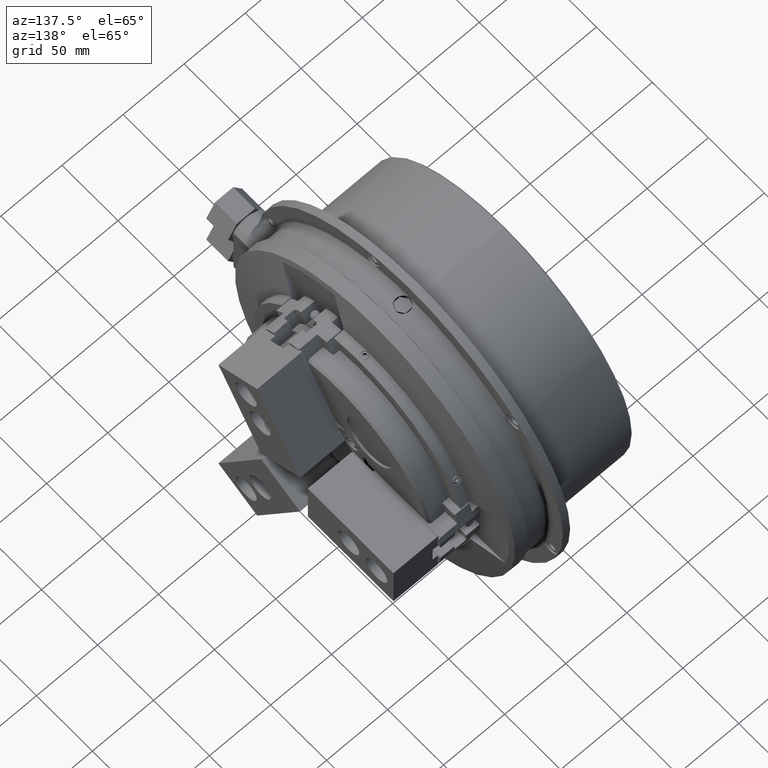
[diagram: clean part render]
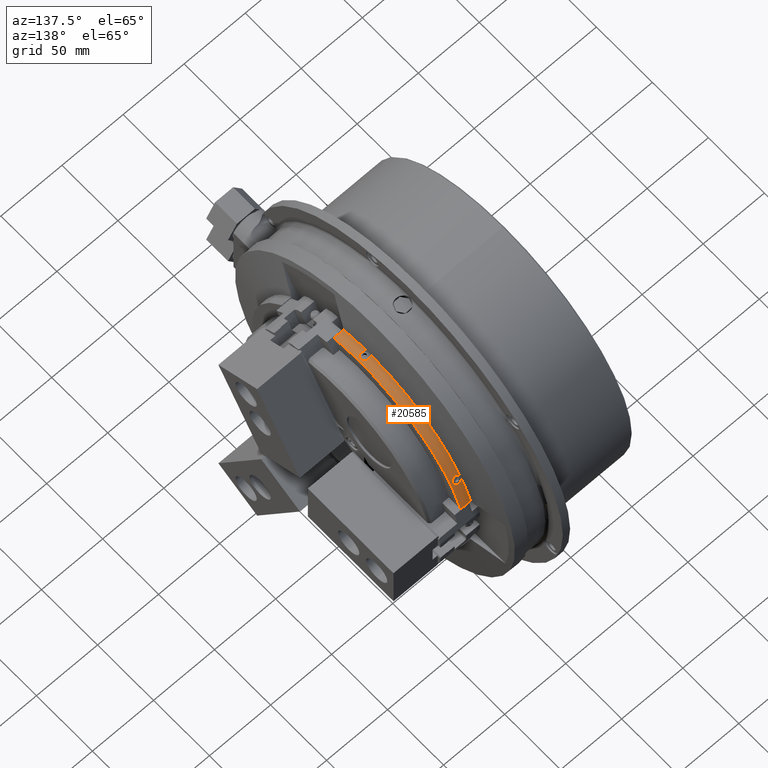
[diagram: same view with one face highlighted and labeled with its STEP entity id]
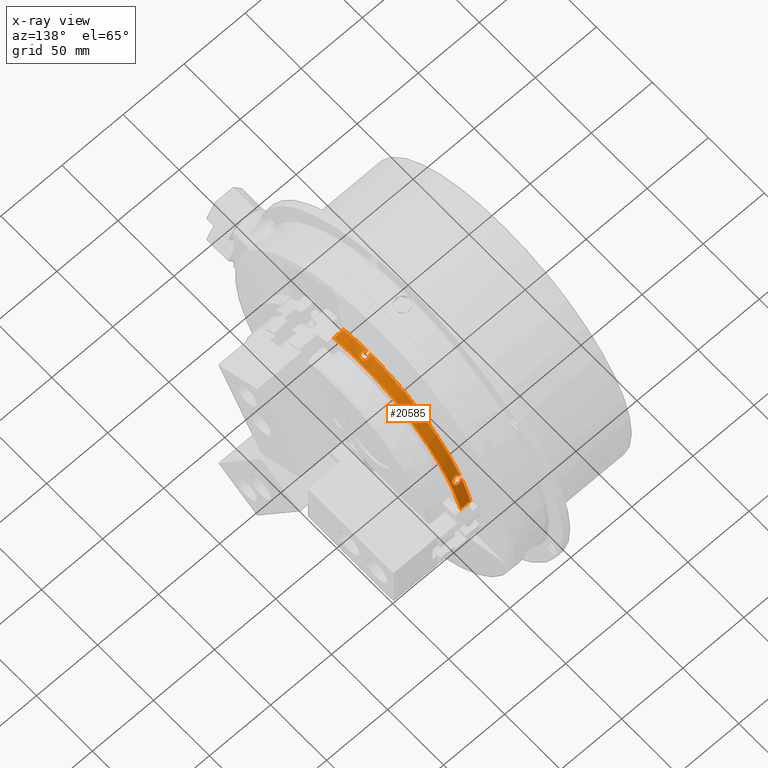
[diagram: x-ray of the same camera — body ghosted, the highlighted face saturated]
A machine part, auxiliary view. The second image highlights one B-rep face of the part: STEP entity #20585.
The next image is the same camera in x-ray: the body ghosted, the highlighted face saturated — about 0% of this face is hidden behind the body in this view.
In plain terms, the highlighted cylindrical surface (partial cylindrical patch) has radius 95 mm, axis along (1, 0, 0).
Its self-contained STEP definition (entity closure, byte-faithful):
#264=CYLINDRICAL_SURFACE('',#21955,95.);
#567=B_SPLINE_CURVE_WITH_KNOTS('',3,(#30682,#30683,#30684,#30685,#30686,
#30687,#30688,#30689,#30690,#30691,#30692,#30693,#30694,#30695,#30696,#30697,
#30698,#30699,#30700,#30701,#30702,#30703,#30704,#30705,#30706,#30707,#30708,
#30709,#30710,#30711,#30712,#30713,#30714,#30715,#30716,#30717,#30718,#30719,
#30720,#30721,#30722,#30723,#30724,#30725,#30726,#30727,#30728,#30729,#30730,
#30731,#30732,#30733,#30734,#30735,#30736,#30737,#30738,#30739,#30740,#30741,
#30742,#30743,#30744,#30745,#30746,#30747,#30748,#30749,#30750,#30751,#30752,
#30753,#30754,#30755,#30756,#30757,#30758,#30759,#30760,#30761,#30762,#30763,
#30764,#30765,#30766,#30767,#30768,#30769,#30770,#30771,#30772,#30773,#30774,
#30775,#30776,#30777,#30778,#30779,#30780,#30781,#30782,#30783,#30784,#30785,
#30786,#30787,#30788,#30789,#30790,#30791,#30792,#30793,#30794,#30795,#30796,
#30797,#30798,#30799,#30800,#30801,#30802,#30803,#30804,#30805,#30806,#30807,
#30808,#30809,#30810,#30811,#30812,#30813,#30814,#30815,#30816,#30817,#30818,
#30819,#30820,#30821,#30822,#30823,#30824,#30825,#30826,#30827,#30828,#30829,
#30830,#30831,#30832,#30833,#30834,#30835,#30836,#30837,#30838,#30839,#30840,
#30841,#30842,#30843,#30844,#30845,#30846,#30847),.UNSPECIFIED.,.F.,.F.,
(4,2,2,2,1,2,1,1,2,2,1,1,2,1,1,2,2,1,1,2,1,1,2,2,1,1,2,1,1,2,2,1,2,1,1,
2,2,1,1,2,1,1,2,2,1,2,1,1,2,2,2,1,2,1,1,2,2,1,2,1,1,2,2,1,2,1,2,1,1,2,2,
1,1,2,1,2,2,1,1,1,2,1,2,2,1,1,1,2,1,1,2,2,1,1,2,1,2,2,1,1,2,2,1,1,2,1,2,
2,2,1,4),(0.,0.0156249999999918,0.0175781249999911,0.0195312499999904,0.0234374999999908,
0.0312499999999918,0.0468749999999923,0.0624999999999928,0.0781249999999933,
0.0800781249999932,0.0820312499999931,0.085937499999993,0.0937499999999925,
0.109374999999991,0.12499999999999,0.140624999999989,0.14257812499999,0.14453124999999,
0.148437499999991,0.156249999999992,0.171874999999994,0.187499999999995,
0.203124999999997,0.205078124999997,0.207031249999997,0.210937499999998,
0.218749999999999,0.234375000000002,0.250000000000004,0.265625000000007,
0.269531250000008,0.273437500000009,0.281250000000012,0.296875000000018,
0.312500000000023,0.328125000000029,0.33007812500003,0.332031250000031,
0.335937500000033,0.343750000000036,0.359375000000044,0.375000000000052,
0.390625000000059,0.394531250000062,0.398437500000064,0.40625000000007,
0.421875000000081,0.437500000000091,0.453125000000102,0.455078125000102,
0.457031250000102,0.460937500000101,0.468750000000099,0.484375000000095,
0.500000000000091,0.515625000000087,0.519531250000086,0.523437500000085,
0.531250000000083,0.54687500000008,0.562500000000077,0.578125000000074,
0.582031250000074,0.585937500000074,0.593750000000074,0.609375000000075,
0.625000000000075,0.632812500000075,0.636718750000075,0.638671875000074,
0.640625000000074,0.656250000000073,0.671875000000073,0.687500000000072,
0.695312500000071,0.699218750000071,0.70117187500007,0.703125000000069,
0.718750000000064,0.734375000000058,0.750000000000052,0.75781250000005,
0.761718750000048,0.763671875000047,0.765625000000047,0.781250000000042,
0.796875000000037,0.812500000000032,0.820312500000029,0.824218750000028,
0.826171875000027,0.828125000000026,0.84375000000002,0.859375000000014,
0.875000000000007,0.882812500000005,0.886718750000004,0.890625000000003,
0.906249999999999,0.921874999999995,0.93749999999999,0.93945312499999,0.94140624999999,
0.94531249999999,0.953124999999991,0.968749999999994,0.984374999999997,
0.992187499999998,0.994140624999999,0.996093749999999,1.),.UNSPECIFIED.);
#568=B_SPLINE_CURVE_WITH_KNOTS('',3,(#30848,#30849,#30850,#30851,#30852,
#30853,#30854,#30855,#30856,#30857,#30858,#30859,#30860,#30861,#30862,#30863,
#30864,#30865,#30866,#30867,#30868,#30869,#30870,#30871,#30872,#30873,#30874,
#30875,#30876,#30877,#30878,#30879,#30880,#30881,#30882,#30883,#30884,#30885,
#30886,#30887,#30888,#30889,#30890,#30891,#30892,#30893,#30894,#30895,#30896,
#30897,#30898,#30899,#30900,#30901,#30902,#30903,#30904,#30905,#30906,#30907,
#30908,#30909,#30910,#30911,#30912,#30913,#30914,#30915,#30916,#30917,#30918,
#30919,#30920,#30921,#30922,#30923,#30924,#30925,#30926,#30927,#30928,#30929,
#30930,#30931,#30932,#30933,#30934,#30935,#30936,#30937,#30938,#30939,#30940,
#30941,#30942,#30943,#30944,#30945,#30946,#30947,#30948,#30949,#30950,#30951,
#30952,#30953,#30954,#30955,#30956,#30957,#30958,#30959,#30960,#30961,#30962,
#30963,#30964,#30965,#30966,#30967,#30968,#30969,#30970,#30971,#30972,#30973,
#30974,#30975,#30976,#30977,#30978,#30979,#30980,#30981,#30982,#30983,#30984,
#30985,#30986,#30987,#30988,#30989,#30990,#30991,#30992,#30993,#30994,#30995,
#30996,#30997,#30998,#30999,#31000,#31001,#31002,#31003,#31004,#31005,#31006,
#31007,#31008,#31009,#31010,#31011,#31012,#31013),.UNSPECIFIED.,.F.,.F.,
(4,1,2,2,1,1,2,2,1,1,2,2,1,1,2,1,2,2,2,1,1,2,1,2,2,2,1,1,2,2,2,1,1,2,2,
2,1,1,1,1,2,2,2,1,1,1,2,2,2,1,1,1,2,2,2,1,1,1,1,2,1,2,2,2,1,1,2,2,2,1,2,
1,1,2,2,2,1,2,1,1,2,2,2,1,2,1,1,2,2,2,2,1,1,2,2,2,1,2,1,1,2,2,2,2,1,1,4),
(0.,0.015624999999999,0.031249999999998,0.0332031249999977,0.0351562499999974,
0.0390624999999968,0.0468749999999956,0.0624999999999932,0.0703124999999918,
0.0742187499999911,0.076171874999991,0.0781249999999909,0.0937499999999899,
0.109374999999989,0.124999999999988,0.128906249999988,0.130859374999987,
0.132812499999987,0.140624999999988,0.156249999999988,0.171874999999989,
0.187499999999989,0.19140624999999,0.19335937499999,0.19531249999999,0.20312499999999,
0.21874999999999,0.234374999999989,0.249999999999989,0.257812499999989,
0.265624999999988,0.281249999999987,0.296874999999986,0.312499999999985,
0.320312499999984,0.322265624999984,0.324218749999984,0.328124999999984,
0.343749999999984,0.359374999999983,0.374999999999983,0.382812499999983,
0.386718749999982,0.390624999999982,0.406249999999982,0.421874999999981,
0.437499999999981,0.445312499999981,0.44921874999998,0.45312499999998,0.46874999999998,
0.484374999999979,0.499999999999979,0.507812499999978,0.509765624999978,
0.511718749999978,0.515624999999978,0.531249999999978,0.546874999999978,
0.562499999999977,0.566406249999977,0.568359374999977,0.570312499999977,
0.578124999999977,0.593749999999976,0.609374999999976,0.624999999999975,
0.628906249999975,0.630859374999975,0.632812499999975,0.640624999999975,
0.656249999999975,0.671874999999975,0.687499999999975,0.689453124999975,
0.691406249999975,0.695312499999975,0.703124999999975,0.718749999999975,
0.734374999999975,0.749999999999976,0.751953124999976,0.753906249999976,
0.757812499999976,0.765624999999977,0.781249999999978,0.79687499999998,
0.812499999999981,0.816406249999982,0.820312499999982,0.828124999999983,
0.843749999999987,0.85937499999999,0.874999999999993,0.878906249999994,
0.880859374999994,0.882812499999994,0.890624999999995,0.906249999999995,
0.921874999999995,0.937499999999996,0.941406249999996,0.945312499999996,
0.953124999999996,0.968749999999998,0.984374999999999,1.),.UNSPECIFIED.);
#771=LINE('',#30132,#2672);
#796=LINE('',#30338,#2697);
#2672=VECTOR('',#24028,1000.);
#2697=VECTOR('',#24139,1000.);
#4676=ORIENTED_EDGE('',*,*,#10532,.F.);
#4677=ORIENTED_EDGE('',*,*,#10515,.T.);
#4678=ORIENTED_EDGE('',*,*,#10533,.F.);
#4679=ORIENTED_EDGE('',*,*,#10511,.T.);
#4680=ORIENTED_EDGE('',*,*,#10526,.T.);
#4681=ORIENTED_EDGE('',*,*,#10531,.F.);
#4682=ORIENTED_EDGE('',*,*,#10460,.F.);
#4683=ORIENTED_EDGE('',*,*,#10519,.T.);
#10460=EDGE_CURVE('',#13399,#13394,#771,.T.);
#10511=EDGE_CURVE('',#13445,#13444,#15467,.T.);
#10515=EDGE_CURVE('',#13449,#13448,#15471,.T.);
#10519=EDGE_CURVE('',#13399,#13452,#15475,.T.);
#10526=EDGE_CURVE('',#13444,#13456,#796,.T.);
#10531=EDGE_CURVE('',#13394,#13456,#15480,.T.);
#10532=EDGE_CURVE('',#13449,#13452,#567,.T.);
#10533=EDGE_CURVE('',#13445,#13448,#568,.T.);
#13394=VERTEX_POINT('',#30116);
#13399=VERTEX_POINT('',#30131);
#13444=VERTEX_POINT('',#30309);
#13445=VERTEX_POINT('',#30311);
#13448=VERTEX_POINT('',#30317);
#13449=VERTEX_POINT('',#30319);
#13452=VERTEX_POINT('',#30325);
#13456=VERTEX_POINT('',#30337);
#15467=CIRCLE('',#21937,95.);
#15471=CIRCLE('',#21941,95.);
#15475=CIRCLE('',#21945,95.);
#15480=CIRCLE('',#21954,95.);
#16255=EDGE_LOOP('',(#4676,#4677,#4678,#4679,#4680,#4681,#4682,#4683));
#18007=FACE_BOUND('',#16255,.T.);
#20585=ADVANCED_FACE('',(#18007),#264,.T.);
#21937=AXIS2_PLACEMENT_3D('',#30310,#24111,#24112);
#21941=AXIS2_PLACEMENT_3D('',#30318,#24119,#24120);
#21945=AXIS2_PLACEMENT_3D('',#30326,#24127,#24128);
#21954=AXIS2_PLACEMENT_3D('',#30680,#24150,#24151);
#21955=AXIS2_PLACEMENT_3D('',#30681,#24152,#24153);
#24028=DIRECTION('',(1.,0.,0.));
#24111=DIRECTION('',(1.,0.,0.));
#24112=DIRECTION('',(0.,0.,-1.));
#24119=DIRECTION('',(1.,0.,0.));
#24120=DIRECTION('',(0.,0.,-1.));
#24127=DIRECTION('',(1.,0.,0.));
#24128=DIRECTION('',(0.,0.,-1.));
#24139=DIRECTION('',(1.,0.,0.));
#24150=DIRECTION('',(1.,0.,0.));
#24151=DIRECTION('',(0.,0.,-1.));
#24152=DIRECTION('',(1.,0.,0.));
#24153=DIRECTION('',(0.,0.,-1.));
#30116=CARTESIAN_POINT('',(-18.,91.0823802938856,27.));
#30131=CARTESIAN_POINT('',(-26.,91.0823802938856,27.));
#30132=CARTESIAN_POINT('',(52.74,91.0823802938856,27.));
#30309=CARTESIAN_POINT('',(-26.,-22.1585042447627,92.3796551716601));
#30310=CARTESIAN_POINT('',(-26.,0.,0.));
#30311=CARTESIAN_POINT('',(-26.,-1.3515316732204,94.9903856300009));
#30317=CARTESIAN_POINT('',(-26.,1.3515315904943,94.9903856311779));
#30318=CARTESIAN_POINT('',(-26.,0.,0.));
#30319=CARTESIAN_POINT('',(-26.,81.588321234213,48.665653578092));
#30325=CARTESIAN_POINT('',(-26.,82.9398528671241,46.3247321242098));
#30326=CARTESIAN_POINT('',(-26.,0.,0.));
#30337=CARTESIAN_POINT('',(-18.,-22.1585042447621,92.3796551716603));
#30338=CARTESIAN_POINT('',(52.74,-22.1585042447621,92.3796551716603));
#30680=CARTESIAN_POINT('',(-18.,0.,0.));
#30681=CARTESIAN_POINT('',(52.74,0.,0.));
#30682=CARTESIAN_POINT('',(-26.,81.5883212836392,48.6656534952288));
#30683=CARTESIAN_POINT('',(-25.9610056386702,81.545461411307,48.7375083822562));
#30684=CARTESIAN_POINT('',(-25.9183117203386,81.5032446961601,48.8080692561271));
#30685=CARTESIAN_POINT('',(-25.8660164892784,81.4565059443326,48.885966710539));
#30686=CARTESIAN_POINT('',(-25.8601465667113,81.451323258759,48.8946013415306));
#30687=CARTESIAN_POINT('',(-25.8482874882492,81.4409790541472,48.9118291587222));
#30688=CARTESIAN_POINT('',(-25.8422955847738,81.4358152528243,48.9204261403892));
#30689=CARTESIAN_POINT('',(-25.8241819534712,81.420391104657,48.946095972634));
#30690=CARTESIAN_POINT('',(-25.7873703311084,81.389782765458,48.9969996233775));
#30691=CARTESIAN_POINT('',(-25.7488254585517,81.359888006223,49.0466111508635));
#30692=CARTESIAN_POINT('',(-25.6694644673042,81.3010385707462,49.1441440498732));
#30693=CARTESIAN_POINT('',(-25.5576014721893,81.2250760863121,49.269687011324));
#30694=CARTESIAN_POINT('',(-25.3719839750243,81.1185915374613,49.4447882129935));
#30695=CARTESIAN_POINT('',(-25.2363146104969,81.0526492573811,49.5527166289035));
#30696=CARTESIAN_POINT('',(-25.1565606625111,81.0170293381945,49.6108961284352));
#30697=CARTESIAN_POINT('',(-25.1476459510729,81.0130897594023,49.6173290669185));
#30698=CARTESIAN_POINT('',(-25.1297503374137,81.0052648997843,49.6301029075664));
#30699=CARTESIAN_POINT('',(-25.1028108171633,80.9936102699646,49.6491236416778));
#30700=CARTESIAN_POINT('',(-25.0392829963855,80.9669921106013,49.6925310076347));
#30701=CARTESIAN_POINT('',(-24.9836958609228,80.9451555807805,49.7280857842371));
#30702=CARTESIAN_POINT('',(-24.8710326876066,80.9027723067117,49.7970314791267));
#30703=CARTESIAN_POINT('',(-24.7168500523265,80.8496962504716,49.8831966422898));
#30704=CARTESIAN_POINT('',(-24.4738641446376,80.7803058160772,49.9954711922984));
#30705=CARTESIAN_POINT('',(-24.30402127361,80.7409475760407,50.0589705899031));
#30706=CARTESIAN_POINT('',(-24.2062151357266,80.7208155825318,50.0914159281893));
#30707=CARTESIAN_POINT('',(-24.1953148417906,80.7186063957068,50.0949757816324));
#30708=CARTESIAN_POINT('',(-24.1735020876611,80.7142542358233,50.1019877867362));
#30709=CARTESIAN_POINT('',(-24.1407457897895,80.707821378907,50.1123505879055));
#30710=CARTESIAN_POINT('',(-24.0640556245259,80.6934759524346,50.135449947769));
#30711=CARTESIAN_POINT('',(-23.9978818898494,80.6823092584037,50.153416094047));
#30712=CARTESIAN_POINT('',(-23.8649572521857,80.6614627711927,50.1869416910086));
#30713=CARTESIAN_POINT('',(-23.6861873149608,80.6376275751047,50.2252332628735));
#30714=CARTESIAN_POINT('',(-23.4134817362391,80.6136388880148,50.263720374472));
#30715=CARTESIAN_POINT('',(-23.2286207013202,80.6055683008281,50.276658332577));
#30716=CARTESIAN_POINT('',(-23.1237510004677,80.6033253668917,50.2802539772893));
#30717=CARTESIAN_POINT('',(-23.1120803146687,80.603108032237,50.2806023797004));
#30718=CARTESIAN_POINT('',(-23.0887627457801,80.6027382957613,50.2811950867023));
#30719=CARTESIAN_POINT('',(-23.0538110876404,80.6022807528537,50.281928540792));
#30720=CARTESIAN_POINT('',(-22.972429216485,80.601889201545,50.2825561798931));
#30721=CARTESIAN_POINT('',(-22.9029654101933,80.6027017013657,50.281253786453));
#30722=CARTESIAN_POINT('',(-22.7644218537839,80.605836111072,50.2762289797385));
#30723=CARTESIAN_POINT('',(-22.5807199232692,80.6140354299511,50.2630844548049));
#30724=CARTESIAN_POINT('',(-22.3081997885042,80.6382404869299,50.2242493619391));
#30725=CARTESIAN_POINT('',(-22.128560262237,80.6623696815736,50.1854842783014));
#30726=CARTESIAN_POINT('',(-22.0169431572877,80.6800174159308,50.1571015355354));
#30727=CARTESIAN_POINT('',(-21.994629466972,80.6836796742219,50.1512102086471));
#30728=CARTESIAN_POINT('',(-21.9502581770615,80.6912309268568,50.1390596508653));
#30729=CARTESIAN_POINT('',(-21.8840387845078,80.7029044931482,50.1202713719029));
#30730=CARTESIAN_POINT('',(-21.8188225130833,80.7156071520367,50.0998108602571));
#30731=CARTESIAN_POINT('',(-21.6897092929167,80.7423624708467,50.056688336807));
#30732=CARTESIAN_POINT('',(-21.5210719057819,80.781631660462,49.993328778989));
#30733=CARTESIAN_POINT('',(-21.2785400619849,80.8511401891835,49.880856701701));
#30734=CARTESIAN_POINT('',(-21.1238712444011,80.9045722251618,49.7941077033056));
#30735=CARTESIAN_POINT('',(-21.0389077832699,80.9366718500517,49.7418857325111));
#30736=CARTESIAN_POINT('',(-21.0294957546072,80.9402669172554,49.7360356208795));
#30737=CARTESIAN_POINT('',(-21.0107287250605,80.9475141983005,49.7242394917598));
#30738=CARTESIAN_POINT('',(-20.9826452585848,80.9584783023612,49.706389280592));
#30739=CARTESIAN_POINT('',(-20.9180747481747,80.9845223073206,49.6639566208519));
#30740=CARTESIAN_POINT('',(-20.8643576050219,81.0076252762905,49.6262587361044));
#30741=CARTESIAN_POINT('',(-20.7590651565972,81.0548508430917,49.5491149365034));
#30742=CARTESIAN_POINT('',(-20.624379189566,81.1205336217193,49.4416013079591));
#30743=CARTESIAN_POINT('',(-20.4392666473012,81.227025873835,49.2664730599551));
#30744=CARTESIAN_POINT('',(-20.3272474542571,81.3033284822829,49.1403563951417));
#30745=CARTESIAN_POINT('',(-20.2609097669381,81.352712242341,49.0585015708143));
#30746=CARTESIAN_POINT('',(-20.2478262796814,81.362673879992,49.0419787340935));
#30747=CARTESIAN_POINT('',(-20.2220316804845,81.3827684654014,49.0086255261672));
#30748=CARTESIAN_POINT('',(-20.1840428346889,81.413054933233,48.9583209279592));
#30749=CARTESIAN_POINT('',(-20.1481440708214,81.4437674030756,48.9072015552713));
#30750=CARTESIAN_POINT('',(-20.079092457504,81.5057473694668,48.8038891569257));
#30751=CARTESIAN_POINT('',(-19.9943361867623,81.5898651729023,48.6632799523052));
#30752=CARTESIAN_POINT('',(-19.8888622988038,81.7203492223364,48.4438546989904));
#30753=CARTESIAN_POINT('',(-19.8331148656162,81.810194902853,48.291822297282));
#30754=CARTESIAN_POINT('',(-19.8059833435317,81.8615521366616,48.2046305679851));
#30755=CARTESIAN_POINT('',(-19.8030275434204,81.8672698956033,48.1949193113575));
#30756=CARTESIAN_POINT('',(-19.7972342179444,81.8787283096023,48.1754499510918));
#30757=CARTESIAN_POINT('',(-19.794395278688,81.8844719102917,48.1656868378016));
#30758=CARTESIAN_POINT('',(-19.7860670848429,81.9017160524219,48.1363627833107));
#30759=CARTESIAN_POINT('',(-19.7701866178505,81.936211698015,48.0776540931889));
#30760=CARTESIAN_POINT('',(-19.7566097352642,81.9707282307621,48.0187649857065));
#30761=CARTESIAN_POINT('',(-19.7324801872111,82.03978659947,47.9007486835995));
#30762=CARTESIAN_POINT('',(-19.7083610322725,82.1319314916711,47.7427593979224));
#30763=CARTESIAN_POINT('',(-19.6960029421211,82.2703246991072,47.503886539991));
#30764=CARTESIAN_POINT('',(-19.7037638336868,82.3626997352166,47.3433661950188));
#30765=CARTESIAN_POINT('',(-19.7137649569108,82.4204720601678,47.2426324920184));
#30766=CARTESIAN_POINT('',(-19.7160263329241,82.432041095845,47.222443162932));
#30767=CARTESIAN_POINT('',(-19.721046737127,82.4550799236103,47.1822035548833));
#30768=CARTESIAN_POINT('',(-19.7293266002824,82.4895144712299,47.1220089435185));
#30769=CARTESIAN_POINT('',(-19.7398305320416,82.5235823163855,47.0623037850249));
#30770=CARTESIAN_POINT('',(-19.7637572969377,82.5912383927175,46.9435367680173));
#30771=CARTESIAN_POINT('',(-19.8034327537957,82.6801690129009,46.7868937223863));
#30772=CARTESIAN_POINT('',(-19.885922473745,82.8098254264555,46.557013250705));
#30773=CARTESIAN_POINT('',(-19.9563382749033,82.8937862834515,46.4071910911023));
#30774=CARTESIAN_POINT('',(-20.0053095731537,82.9454783519304,46.3146636639545));
#30775=CARTESIAN_POINT('',(-20.0153240464949,82.9557474228119,46.2962677438002));
#30776=CARTESIAN_POINT('',(-20.0357664091271,82.9761254234176,46.259734620945));
#30777=CARTESIAN_POINT('',(-20.0670610429067,83.0064635921503,46.2053026381668));
#30778=CARTESIAN_POINT('',(-20.1002295232351,83.0361239880358,46.1519633719663));
#30779=CARTESIAN_POINT('',(-20.1690270411986,83.0945594440033,46.0467222610046));
#30780=CARTESIAN_POINT('',(-20.2673096752732,83.1701155987892,45.9102286715054));
#30781=CARTESIAN_POINT('',(-20.3785163017207,83.2410738714189,45.7813139926064));
#30782=CARTESIAN_POINT('',(-20.4668052450556,83.2925763110187,45.6875038058798));
#30783=CARTESIAN_POINT('',(-20.5121723411612,83.3178979085351,45.6413186379943));
#30784=CARTESIAN_POINT('',(-20.5672662295898,83.3466836551619,45.5887138188314));
#30785=CARTESIAN_POINT('',(-20.5913459426009,83.3588575192484,45.5664453742704));
#30786=CARTESIAN_POINT('',(-20.6075035744472,83.3669371245962,45.5516615001513));
#30787=CARTESIAN_POINT('',(-20.6156304045601,83.3709566098183,45.5443044005166));
#30788=CARTESIAN_POINT('',(-20.6890726159085,83.4068858158704,45.4785206195056));
#30789=CARTESIAN_POINT('',(-20.824436380727,83.4675327917374,45.3671890147005));
#30790=CARTESIAN_POINT('',(-21.0414067488712,83.5492288846419,45.2165356333191));
#30791=CARTESIAN_POINT('',(-21.1952282743897,83.5976389570513,45.1268993706391));
#30792=CARTESIAN_POINT('',(-21.3140680498387,83.6316747737185,45.0637719908497));
#30793=CARTESIAN_POINT('',(-21.3743574933983,83.6481239768769,45.0332345993908));
#30794=CARTESIAN_POINT('',(-21.435968264632,83.6637126574585,45.0042586908776));
#30795=CARTESIAN_POINT('',(-21.4669958784751,83.6713625640766,44.9900335147367));
#30796=CARTESIAN_POINT('',(-21.4773814479768,83.6738898954447,44.9853329167094));
#30797=CARTESIAN_POINT('',(-21.4981942134234,83.6788883984565,44.9760343323067));
#30798=CARTESIAN_POINT('',(-21.5920207144377,83.7011244660047,44.9346607279383));
#30799=CARTESIAN_POINT('',(-21.7720966562796,83.7387974036146,44.8644315334264));
#30800=CARTESIAN_POINT('',(-22.033252507025,83.7815141803136,44.7845952593417));
#30801=CARTESIAN_POINT('',(-22.2119338611822,83.8031142713046,44.7441438553146));
#30802=CARTESIAN_POINT('',(-22.3476816599365,83.8167154255445,44.7186572696665));
#30803=CARTESIAN_POINT('',(-22.4159903237673,83.8228653755501,44.7071285318352));
#30804=CARTESIAN_POINT('',(-22.4849602948059,83.8280272315169,44.6974480499813));
#30805=CARTESIAN_POINT('',(-22.5195565570969,83.8304420005698,44.6929188677163));
#30806=CARTESIAN_POINT('',(-22.5311135115377,83.8312196379198,44.6914602195138));
#30807=CARTESIAN_POINT('',(-22.5542320398255,83.8327171806665,44.6886510496781));
#30808=CARTESIAN_POINT('',(-22.6582495260336,83.8391938399891,44.6765009610332));
#30809=CARTESIAN_POINT('',(-22.8544591944821,83.8470095194871,44.661829496648));
#30810=CARTESIAN_POINT('',(-23.130808079768,83.8472856402267,44.6613109930082));
#30811=CARTESIAN_POINT('',(-23.3146086386832,83.8403525227684,44.6743261224976));
#30812=CARTESIAN_POINT('',(-23.4522948568133,83.8324441319448,44.6891635888915));
#30813=CARTESIAN_POINT('',(-23.5210968619569,83.827811857275,44.6978529808184));
#30814=CARTESIAN_POINT('',(-23.6012928630369,83.8212018110766,44.7102466905937));
#30815=CARTESIAN_POINT('',(-23.6356467783682,83.8181078079166,44.7160464327558));
#30816=CARTESIAN_POINT('',(-23.6585458590737,83.8159867827868,44.7200219667167));
#30817=CARTESIAN_POINT('',(-23.6699877923734,83.8148976000543,44.7220633011296));
#30818=CARTESIAN_POINT('',(-23.7727133184599,83.8048550213617,44.7408832544632));
#30819=CARTESIAN_POINT('',(-23.9525159280797,83.7835264563996,44.7808299981044));
#30820=CARTESIAN_POINT('',(-24.2139929483904,83.7413558649918,44.859654827857));
#30821=CARTESIAN_POINT('',(-24.3828625735946,83.7064661361296,44.9247055464722));
#30822=CARTESIAN_POINT('',(-24.5074420026762,83.677704751701,44.9782407153304));
#30823=CARTESIAN_POINT('',(-24.5692128303159,83.6626746286993,45.0061966365411));
#30824=CARTESIAN_POINT('',(-24.6301932674412,83.6466518347996,45.0359608430833));
#30825=CARTESIAN_POINT('',(-24.670669430334,83.6357466862218,45.0562094329967));
#30826=CARTESIAN_POINT('',(-24.6908286815806,83.6301796937074,45.0665417731685));
#30827=CARTESIAN_POINT('',(-24.7910699518347,83.6018095348439,45.1191725368732));
#30828=CARTESIAN_POINT('',(-24.9465541913994,83.5533863388938,45.2088528478391));
#30829=CARTESIAN_POINT('',(-25.1653339444726,83.4717367944392,45.3594533021928));
#30830=CARTESIAN_POINT('',(-25.3015180288723,83.4112124050472,45.4705845457478));
#30831=CARTESIAN_POINT('',(-25.3753314590589,83.3753926235922,45.5361831275708));
#30832=CARTESIAN_POINT('',(-25.3834915657533,83.3713891421815,45.5435126314012));
#30833=CARTESIAN_POINT('',(-25.3997021218359,83.3633484752624,45.5582286891802));
#30834=CARTESIAN_POINT('',(-25.4238649346897,83.3512313707296,45.5803985124462));
#30835=CARTESIAN_POINT('',(-25.4791778060357,83.3225662897087,45.6327953344823));
#30836=CARTESIAN_POINT('',(-25.52477255806,83.2973271262801,45.678841491399));
#30837=CARTESIAN_POINT('',(-25.6135624942442,83.2459593155408,45.7724297274117));
#30838=CARTESIAN_POINT('',(-25.7255588093977,83.1751000558891,45.9011977800785));
#30839=CARTESIAN_POINT('',(-25.8247994054254,83.099455391794,46.037886452657));
#30840=CARTESIAN_POINT('',(-25.8943507558212,83.0408711401953,46.1434214069309));
#30841=CARTESIAN_POINT('',(-25.9167202201716,83.0210341746029,46.1791035075364));
#30842=CARTESIAN_POINT('',(-25.9436452881081,82.9958426979649,46.2243464217283));
#30843=CARTESIAN_POINT('',(-25.9489758844386,82.9907869371725,46.2334228862821));
#30844=CARTESIAN_POINT('',(-25.9595092273505,82.9806588467452,46.2515985193275));
#30845=CARTESIAN_POINT('',(-25.9751258842881,82.9654340054777,46.2789101291683));
#30846=CARTESIAN_POINT('',(-25.9901951224976,82.9501113067929,46.3063654022135));
#30847=CARTESIAN_POINT('',(-26.,82.9398528604595,46.3247321361422));
#30848=CARTESIAN_POINT('',(-26.,-1.35153157682036,94.9903856313725));
#30849=CARTESIAN_POINT('',(-25.9610750715526,-1.43504070996078,94.9891974560678));
#30850=CARTESIAN_POINT('',(-25.8761001599873,-1.59865037738225,94.9866494206475));
#30851=CARTESIAN_POINT('',(-25.7768074921887,-1.75541127161118,94.9838112752184));
#30852=CARTESIAN_POINT('',(-25.7168189363865,-1.84161090226226,94.9821486441102));
#30853=CARTESIAN_POINT('',(-25.7100941744799,-1.85116353617285,94.9819629400792));
#30854=CARTESIAN_POINT('',(-25.6965570761398,-1.87017443498696,94.9815905213792));
#30855=CARTESIAN_POINT('',(-25.6761105021209,-1.89856314591021,94.9810301112286));
#30856=CARTESIAN_POINT('',(-25.6274194346712,-1.96391373058648,94.9797107393402));
#30857=CARTESIAN_POINT('',(-25.5840129958125,-2.01841495326021,94.9785621806656));
#30858=CARTESIAN_POINT('',(-25.4949946700954,-2.12542016547537,94.9762479804325));
#30859=CARTESIAN_POINT('',(-25.4327124786744,-2.19409757835654,94.9746824061359));
#30860=CARTESIAN_POINT('',(-25.3349021882036,-2.29314143965748,94.9723254054578));
#30861=CARTESIAN_POINT('',(-25.2848988020803,-2.34166895659191,94.971144741194));
#30862=CARTESIAN_POINT('',(-25.2246276735455,-2.39653350002302,94.9697691215342));
#30863=CARTESIAN_POINT('',(-25.1983804824398,-2.41966960467047,94.9691805686001));
#30864=CARTESIAN_POINT('',(-25.1807894664098,-2.43500957811544,94.9687884898066));
#30865=CARTESIAN_POINT('',(-25.1719457048126,-2.44263898290553,94.9685925566168));
#30866=CARTESIAN_POINT('',(-25.0920861695466,-2.51079420552603,94.9668341323971));
#30867=CARTESIAN_POINT('',(-24.9458194329373,-2.62518929447911,94.9637672106851));
#30868=CARTESIAN_POINT('',(-24.7139059194448,-2.7770576103823,94.9594369622195));
#30869=CARTESIAN_POINT('',(-24.5510163101235,-2.86525255960265,94.9567901367747));
#30870=CARTESIAN_POINT('',(-24.4465860372248,-2.91623894677241,94.9552297374252));
#30871=CARTESIAN_POINT('',(-24.4150598010501,-2.9312241766908,94.9547686604784));
#30872=CARTESIAN_POINT('',(-24.3832357780687,-2.94574015164611,94.9543186900407));
#30873=CARTESIAN_POINT('',(-24.3619533148785,-2.9553127606111,94.9540212387964));
#30874=CARTESIAN_POINT('',(-24.3512772148301,-2.96004734911559,94.9538737574109));
#30875=CARTESIAN_POINT('',(-24.2978482003019,-2.98340652909078,94.9531444189156));
#30876=CARTESIAN_POINT('',(-24.2548575643825,-3.00113231969185,94.9525854662966));
#30877=CARTESIAN_POINT('',(-24.1251573939183,-3.05147962430302,94.9509852494488));
#30878=CARTESIAN_POINT('',(-23.9502844657638,-3.11107289029157,94.9490560534777));
#30879=CARTESIAN_POINT('',(-23.6822809377624,-3.17833708300762,94.9468230231464));
#30880=CARTESIAN_POINT('',(-23.4998174679998,-3.20843679629465,94.9458059150672));
#30881=CARTESIAN_POINT('',(-23.3845670990275,-3.22254524434044,94.9453274791302));
#30882=CARTESIAN_POINT('',(-23.3499010308622,-3.22642438570712,94.9451957447134));
#30883=CARTESIAN_POINT('',(-23.3150973455646,-3.22976885365249,94.9450819909412));
#30884=CARTESIAN_POINT('',(-23.2918641547929,-3.23187909123173,94.9450101830224));
#30885=CARTESIAN_POINT('',(-23.2802265649848,-3.2328749132526,94.9449762792557));
#30886=CARTESIAN_POINT('',(-23.2220869941981,-3.23754437030187,94.9448172383357));
#30887=CARTESIAN_POINT('',(-23.1756571714897,-3.24029707936323,94.9447232764225));
#30888=CARTESIAN_POINT('',(-23.0366087940314,-3.24565964094247,94.9445401605115));
#30889=CARTESIAN_POINT('',(-22.8518529943598,-3.24509869326752,94.9445593768766));
#30890=CARTESIAN_POINT('',(-22.5766075641211,-3.22157864965709,94.9453622083342));
#30891=CARTESIAN_POINT('',(-22.3943709139693,-3.19076166273188,94.9464028391317));
#30892=CARTESIAN_POINT('',(-22.2581767404452,-3.16184376576204,94.9473687735509));
#30893=CARTESIAN_POINT('',(-22.2128593424716,-3.15123564777549,94.9477216604268));
#30894=CARTESIAN_POINT('',(-22.1223890311237,-3.12804369575009,94.948488546428));
#30895=CARTESIAN_POINT('',(-22.0775515771735,-3.11554054812686,94.9488998704766));
#30896=CARTESIAN_POINT('',(-21.9442457591228,-3.0753663721989,94.9502124260918));
#30897=CARTESIAN_POINT('',(-21.7696868517748,-3.01469659130045,94.9521722467274));
#30898=CARTESIAN_POINT('',(-21.5172140449458,-2.90278146619193,94.9556676844402));
#30899=CARTESIAN_POINT('',(-21.355154912111,-2.8142019609354,94.958320121741));
#30900=CARTESIAN_POINT('',(-21.2360121013531,-2.74240418823187,94.960411712057));
#30901=CARTESIAN_POINT('',(-21.1966986271194,-2.71757653421926,94.9611259458594));
#30902=CARTESIAN_POINT('',(-21.1480679056026,-2.685400448972,94.9620380250653));
#30903=CARTESIAN_POINT('',(-21.138361569386,-2.67890419037184,94.9622215154705));
#30904=CARTESIAN_POINT('',(-21.1190385461453,-2.66582281362114,94.9625896421367));
#30905=CARTESIAN_POINT('',(-21.0901838653767,-2.64606470307133,94.9631436317073));
#30906=CARTESIAN_POINT('',(-20.9858060487307,-2.57212776095664,94.9651936027063));
#30907=CARTESIAN_POINT('',(-20.8226825448834,-2.44309705739412,94.9686375711141));
#30908=CARTESIAN_POINT('',(-20.6212439085976,-2.25422785052786,94.9733194881058));
#30909=CARTESIAN_POINT('',(-20.4976783265414,-2.11707301484351,94.9764344987284));
#30910=CARTESIAN_POINT('',(-20.40912268189,-2.00988992812068,94.9787429877718));
#30911=CARTESIAN_POINT('',(-20.3802914932517,-1.97344175812864,94.9795078467299));
#30912=CARTESIAN_POINT('',(-20.3380967915489,-1.91766665944772,94.9806448724064));
#30913=CARTESIAN_POINT('',(-20.3241951694401,-1.89887348284319,94.9810225069584));
#30914=CARTESIAN_POINT('',(-20.2968739454939,-1.8610935198348,94.9817702924178));
#30915=CARTESIAN_POINT('',(-20.229708538306,-1.76607143334858,94.9836228883358));
#30916=CARTESIAN_POINT('',(-20.118929844776,-1.58994215716781,94.9867954392656));
#30917=CARTESIAN_POINT('',(-19.9923689431391,-1.34446707254626,94.9905961963154));
#30918=CARTESIAN_POINT('',(-19.9221046714832,-1.1737186396654,94.9927891349447));
#30919=CARTESIAN_POINT('',(-19.874819705579,-1.04293372114605,94.9942850387516));
#30920=CARTESIAN_POINT('',(-19.8599614953681,-0.998884193117308,94.9947588659315));
#30921=CARTESIAN_POINT('',(-19.8390565615025,-0.932114346555233,94.9954296703366));
#30922=CARTESIAN_POINT('',(-19.8323149884629,-0.909726609684614,94.9956467373352));
#30923=CARTESIAN_POINT('',(-19.8193599984297,-0.864937986505377,94.9960650965525));
#30924=CARTESIAN_POINT('',(-19.7882532591479,-0.752807139827787,94.9970728857507));
#30925=CARTESIAN_POINT('',(-19.743647655303,-0.549555411157524,94.9985407129039));
#30926=CARTESIAN_POINT('',(-19.7079293609039,-0.275598289557284,94.9997333219814));
#30927=CARTESIAN_POINT('',(-19.6999476857908,-0.0909910948856266,95.0000017562244));
#30928=CARTESIAN_POINT('',(-19.7000269322166,0.0482187807896491,94.9999990958667));
#30929=CARTESIAN_POINT('',(-19.7010656550079,0.0947479920351572,94.9999642092159));
#30930=CARTESIAN_POINT('',(-19.7036540299406,0.153069963159326,94.9998773980513));
#30931=CARTESIAN_POINT('',(-19.704236082552,0.164737040438208,94.9998578806915));
#30932=CARTESIAN_POINT('',(-19.7055262501951,0.188030268380536,94.9998146327784));
#30933=CARTESIAN_POINT('',(-19.707651447742,0.222928506138273,94.9997434128704));
#30934=CARTESIAN_POINT('',(-19.7175238696702,0.35043312044687,94.9994129382559));
#30935=CARTESIAN_POINT('',(-19.7448903796108,0.556621348170226,94.9984994523915));
#30936=CARTESIAN_POINT('',(-19.8047503353934,0.826420156346493,94.996530670168));
#30937=CARTESIAN_POINT('',(-19.8602187070339,1.00287786326143,94.9947465316063));
#30938=CARTESIAN_POINT('',(-19.8998511285843,1.11207670373381,94.9934932637142));
#30939=CARTESIAN_POINT('',(-19.9121138619271,1.14475467056302,94.9931069217322));
#30940=CARTESIAN_POINT('',(-19.9249409929358,1.17730904198323,94.9927053035801));
#30941=CARTESIAN_POINT('',(-19.9336184676844,1.19898435246966,94.9924341934434));
#30942=CARTESIAN_POINT('',(-19.9380188285569,1.20980447284985,94.992297000173));
#30943=CARTESIAN_POINT('',(-19.9602821578526,1.26370540178193,94.9916044098793));
#30944=CARTESIAN_POINT('',(-19.9789691920368,1.3062877825018,94.9910278982607));
#30945=CARTESIAN_POINT('',(-20.0376082627286,1.4324513377304,94.989237068841));
#30946=CARTESIAN_POINT('',(-20.1226585811951,1.5964524634925,94.9866859454693));
#30947=CARTESIAN_POINT('',(-20.2703749618099,1.83008347235024,94.9824617665958));
#30948=CARTESIAN_POINT('',(-20.3822713615268,1.97759660302524,94.9794411867806));
#30949=CARTESIAN_POINT('',(-20.4564897273234,2.06716228558385,94.9775087118782));
#30950=CARTESIAN_POINT('',(-20.4715479316037,2.0849436905431,94.977119989132));
#30951=CARTESIAN_POINT('',(-20.4944598764945,2.11141646266423,94.9765339356352));
#30952=CARTESIAN_POINT('',(-20.5021506479352,2.1202065904856,94.9763381078042));
#30953=CARTESIAN_POINT('',(-20.5176035076465,2.13767838794162,94.9759464678505));
#30954=CARTESIAN_POINT('',(-20.5564367641167,2.18111308259163,94.9749668227439));
#30955=CARTESIAN_POINT('',(-20.5962692105895,2.22333152891033,94.9739853182484));
#30956=CARTESIAN_POINT('',(-20.693750428904,2.32236348988891,94.9716325493781));
#30957=CARTESIAN_POINT('',(-20.8287407069715,2.44830172449942,94.9685032026688));
#30958=CARTESIAN_POINT('',(-21.0459718615803,2.6192639190334,94.9639310353015));
#30959=CARTESIAN_POINT('',(-21.2006351886164,2.7212622678428,94.9610290146111));
#30960=CARTESIAN_POINT('',(-21.2904654686914,2.77519061918724,94.9594563640833));
#30961=CARTESIAN_POINT('',(-21.3004860187634,2.78113471301941,94.9592824556929));
#30962=CARTESIAN_POINT('',(-21.3206062832454,2.79292658761369,94.9589363665591));
#30963=CARTESIAN_POINT('',(-21.3307117296702,2.79877762934761,94.958764089372));
#30964=CARTESIAN_POINT('',(-21.3611017202009,2.81615958476721,94.9582507188886));
#30965=CARTESIAN_POINT('',(-21.4221429633791,2.85022080045815,94.9572383601602));
#30966=CARTESIAN_POINT('',(-21.4839592734395,2.88219744833456,94.956270749775));
#30967=CARTESIAN_POINT('',(-21.6086078267892,2.94341852093817,94.9543993438622));
#30968=CARTESIAN_POINT('',(-21.7775113963896,3.01777053297187,94.9520743681581));
#30969=CARTESIAN_POINT('',(-22.0388414221369,3.10785401730936,94.949161770152));
#30970=CARTESIAN_POINT('',(-22.2183963377731,3.153564991907,94.9476455531938));
#30971=CARTESIAN_POINT('',(-22.3209342231487,3.17514161070012,94.9469245500135));
#30972=CARTESIAN_POINT('',(-22.3323487252012,3.1774814656893,94.9468462706832));
#30973=CARTESIAN_POINT('',(-22.3552207366337,3.18204554464591,94.9466934198624));
#30974=CARTESIAN_POINT('',(-22.3666849588529,3.18427101421328,94.9466188065441));
#30975=CARTESIAN_POINT('',(-22.4010845976415,3.19076231404913,94.9464009565601));
#30976=CARTESIAN_POINT('',(-22.4699003038238,3.20300333802574,94.9459892528075));
#30977=CARTESIAN_POINT('',(-22.5387647759912,3.21304312888312,94.9456496461376));
#30978=CARTESIAN_POINT('',(-22.676557711054,3.23023431313556,94.9450668427955));
#30979=CARTESIAN_POINT('',(-22.8604520396456,3.24546374631476,94.9445468694094));
#30980=CARTESIAN_POINT('',(-23.1367968427469,3.24559018872864,94.9445425262695));
#30981=CARTESIAN_POINT('',(-23.3213640326294,3.23044895989532,94.9450595421265));
#30982=CARTESIAN_POINT('',(-23.4368267873878,3.21609903924988,94.9455460525454));
#30983=CARTESIAN_POINT('',(-23.4599247608322,3.21298429597502,94.9456515235413));
#30984=CARTESIAN_POINT('',(-23.5061316630202,3.20626030701561,94.945878826622));
#30985=CARTESIAN_POINT('',(-23.5291730236888,3.20266073962216,94.9460003311648));
#30986=CARTESIAN_POINT('',(-23.5980481410787,3.19116561243496,94.9463876133719));
#30987=CARTESIAN_POINT('',(-23.6436612046136,3.18256987295162,94.9466762957905));
#30988=CARTESIAN_POINT('',(-23.7796032921611,3.15402841714528,94.9476301294518));
#30989=CARTESIAN_POINT('',(-23.9584703075309,3.10863826120941,94.9491359582395));
#30990=CARTESIAN_POINT('',(-24.2197074500616,3.01886593352696,94.9520394527671));
#30991=CARTESIAN_POINT('',(-24.3891264027293,2.94446555700432,94.9543669367742));
#30992=CARTESIAN_POINT('',(-24.493490358256,2.89328858632515,94.9559318105904));
#30993=CARTESIAN_POINT('',(-24.5142868707327,2.88281894311568,94.9562502928179));
#30994=CARTESIAN_POINT('',(-24.5453660182737,2.8667593992219,94.9567360392602));
#30995=CARTESIAN_POINT('',(-24.5557126462538,2.86134373001845,94.9568993910427));
#30996=CARTESIAN_POINT('',(-24.5763318387319,2.8504121421087,94.9572281636424));
#30997=CARTESIAN_POINT('',(-24.6276896485255,2.82283561801534,94.9580551772243));
#30998=CARTESIAN_POINT('',(-24.6781018550654,2.79402814300198,94.9589067686294));
#30999=CARTESIAN_POINT('',(-24.7973035238399,2.72256299209343,94.9609915838217));
#31000=CARTESIAN_POINT('',(-24.9514784668707,2.62107854883675,94.9638805804101));
#31001=CARTESIAN_POINT('',(-25.1686654469194,2.45052544862109,94.9684456809499));
#31002=CARTESIAN_POINT('',(-25.3040102733657,2.3245221836776,94.9715798386193));
#31003=CARTESIAN_POINT('',(-25.3855636203432,2.24181458319006,94.9735465335017));
#31004=CARTESIAN_POINT('',(-25.4017221604037,2.22507493221277,94.9739402607979));
#31005=CARTESIAN_POINT('',(-25.4337317287931,2.19119511742531,94.9747279599839));
#31006=CARTESIAN_POINT('',(-25.4496006882721,2.17403465991452,94.9751223866604));
#31007=CARTESIAN_POINT('',(-25.4965419680057,2.12216766166218,94.976300205211));
#31008=CARTESIAN_POINT('',(-25.5269857545281,2.08704046714817,94.9770789973325));
#31009=CARTESIAN_POINT('',(-25.6158065406462,1.98003741939302,94.9793900955675));
#31010=CARTESIAN_POINT('',(-25.7275485074375,1.83304866802138,94.9824040714974));
#31011=CARTESIAN_POINT('',(-25.8754117474975,1.59980836134066,94.986629293963));
#31012=CARTESIAN_POINT('',(-25.9607410010688,1.43575742127206,94.9891872586361));
#31013=CARTESIAN_POINT('',(-26.,1.35153157682035,94.9903856313725));